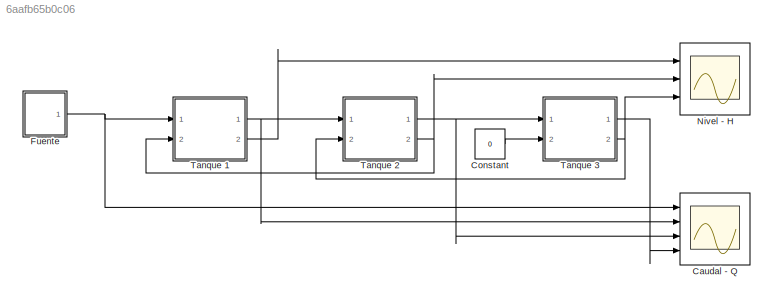
MODEL slx_6aafb65b0c06
KIND model
CONFIG AbsTol = auto
CONFIG EnableMultiTasking = on
CONFIG FixedStep = auto
CONFIG MaxStep = auto
CONFIG MinStep = auto
CONFIG RelTol = 1e-3
CONFIG SampleTimeConstraint = Unconstrained
CONFIG Solver = ode23tb
CONFIG SolverName = ode23tb
CONFIG StartTime = 0.0
CONFIG StopTime = 40.0
BLOCK [Scope] Caudal - Q
  Floating = off
  NumInputPorts = 4
  Ports = [4]
  ScopeSpecificationString = Simulink.scopes.TimeScopeBlockCfg('CurrentConfiguration', extmgr.ConfigurationSet(extmgr.Configuration('Core','General UI',true,'FigureColor',[0.972549019607843 0.972549019607843 0.972549019607843]),extmgr.Configuration('Core','Source UI',true),extmgr.Configuration('Sources','WiredSimulink',true,'DataLoggingVariableName','ScopeData1'),extmgr.Configuration('Visuals','Time Domain',true,'SerializedDi...<+2057ch>
BLOCK [Constant] Constant
  Value = 0
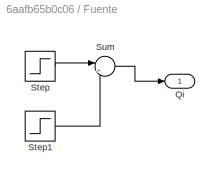
BLOCK [SubSystem] Fuente
  Ports = [0, 1]
  RequestExecContextInheritance = off
BLOCK [Outport] Fuente/Qi
  IconDisplay = Port number
BLOCK [Step] Fuente/Step
  SampleTime = 0
BLOCK [Step] Fuente/Step1
  After = -1
  SampleTime = 0
  Time = 20
BLOCK [Sum] Fuente/Sum
  IconShape = round
  InputSameDT = off
  Inputs = |++
  OutDataTypeStr = Inherit: Inherit via internal rule
  Ports = [2, 1]
  SaturateOnIntegerOverflow = off
BLOCK [Scope] Nivel - H
  Floating = off
  NumInputPorts = 3
  Ports = [3]
  ScopeSpecificationString = Simulink.scopes.TimeScopeBlockCfg('CurrentConfiguration', extmgr.ConfigurationSet(extmgr.Configuration('Core','General UI',true,'FigureColor',[0.972549019607843 0.972549019607843 0.972549019607843]),extmgr.Configuration('Core','Source UI',true),extmgr.Configuration('Sources','WiredSimulink',true),extmgr.Configuration('Visuals','Time Domain',true,'SerializedDisplays',{struct('MinYLimReal','-0.12515...<+1920ch>
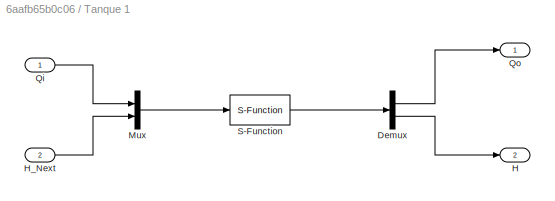
BLOCK [SubSystem] Tanque 1
  Ports = [2, 2]
  RequestExecContextInheritance = off
BLOCK [Demux] Tanque 1/Demux
  DisplayOption = bar
  Outputs = 2
  Ports = [1, 2]
BLOCK [Outport] Tanque 1/H 
  IconDisplay = Port number
  Port = 2
BLOCK [Inport] Tanque 1/H_Next
  IconDisplay = Port number
  Port = 2
BLOCK [Mux] Tanque 1/Mux
  DisplayOption = bar
  Inputs = 2
  Ports = [2, 1]
BLOCK [Inport] Tanque 1/Qi 
  IconDisplay = Port number
BLOCK [Outport] Tanque 1/Qo
  IconDisplay = Port number
BLOCK [S-Function] Tanque 1/S-Function
  EnableBusSupport = off
  FunctionName = tanque
  Parameters = 1, 1, 1, 0
  Ports = [1, 1]
  SFcnIsStateOwnerBlock = off
  SFunctionDeploymentMode = off
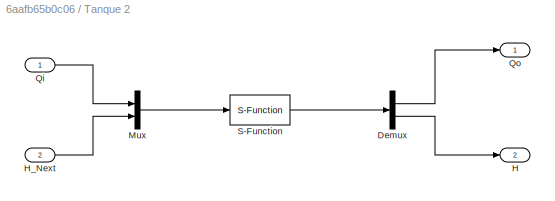
BLOCK [SubSystem] Tanque 2 
  Ports = [2, 2]
  RequestExecContextInheritance = off
BLOCK [Demux] Tanque 2 /Demux
  DisplayOption = bar
  Outputs = 2
  Ports = [1, 2]
BLOCK [Outport] Tanque 2 /H 
  IconDisplay = Port number
  Port = 2
BLOCK [Inport] Tanque 2 /H_Next
  IconDisplay = Port number
  Port = 2
BLOCK [Mux] Tanque 2 /Mux
  DisplayOption = bar
  Inputs = 2
  Ports = [2, 1]
BLOCK [Inport] Tanque 2 /Qi 
  IconDisplay = Port number
BLOCK [Outport] Tanque 2 /Qo
  IconDisplay = Port number
BLOCK [S-Function] Tanque 2 /S-Function
  EnableBusSupport = off
  FunctionName = tanque
  Parameters = 1, 1, 1, 0
  Ports = [1, 1]
  SFcnIsStateOwnerBlock = off
  SFunctionDeploymentMode = off
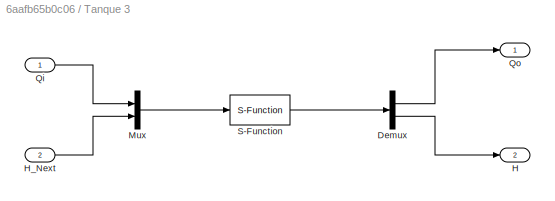
BLOCK [SubSystem] Tanque 3
  Ports = [2, 2]
  RequestExecContextInheritance = off
BLOCK [Demux] Tanque 3/Demux
  DisplayOption = bar
  Outputs = 2
  Ports = [1, 2]
BLOCK [Outport] Tanque 3/H 
  IconDisplay = Port number
  Port = 2
BLOCK [Inport] Tanque 3/H_Next
  IconDisplay = Port number
  Port = 2
BLOCK [Mux] Tanque 3/Mux
  DisplayOption = bar
  Inputs = 2
  Ports = [2, 1]
BLOCK [Inport] Tanque 3/Qi 
  IconDisplay = Port number
BLOCK [Outport] Tanque 3/Qo
  IconDisplay = Port number
BLOCK [S-Function] Tanque 3/S-Function
  EnableBusSupport = off
  FunctionName = tanque
  Parameters = 1, 1, 1, 0
  Ports = [1, 1]
  SFcnIsStateOwnerBlock = off
  SFunctionDeploymentMode = off
LINE Constant:1 -> Tanque 3:2
LINE Fuente/Step1:1 -> Fuente/Sum:2
LINE Fuente/Step:1 -> Fuente/Sum:1
LINE Fuente/Sum:1 -> Fuente/Qi:1
NET Fuente:1 -> Caudal - Q:1, Tanque 1:1
LINE Tanque 1/Demux:1 -> Tanque 1/Qo:1
LINE Tanque 1/Demux:2 -> Tanque 1/H :1
LINE Tanque 1/H_Next:1 -> Tanque 1/Mux:2
LINE Tanque 1/Mux:1 -> Tanque 1/S-Function:1
LINE Tanque 1/Qi :1 -> Tanque 1/Mux:1
LINE Tanque 1/S-Function:1 -> Tanque 1/Demux:1
NET Tanque 1:1 -> Caudal - Q:2, Tanque 2 :1
LINE Tanque 1:2 -> Nivel - H:1
LINE Tanque 2 /Demux:1 -> Tanque 2 /Qo:1
LINE Tanque 2 /Demux:2 -> Tanque 2 /H :1
LINE Tanque 2 /H_Next:1 -> Tanque 2 /Mux:2
LINE Tanque 2 /Mux:1 -> Tanque 2 /S-Function:1
LINE Tanque 2 /Qi :1 -> Tanque 2 /Mux:1
LINE Tanque 2 /S-Function:1 -> Tanque 2 /Demux:1
NET Tanque 2 :1 -> Caudal - Q:3, Tanque 3:1
NET Tanque 2 :2 -> Nivel - H:2, Tanque 1:2
LINE Tanque 3/Demux:1 -> Tanque 3/Qo:1
LINE Tanque 3/Demux:2 -> Tanque 3/H :1
LINE Tanque 3/H_Next:1 -> Tanque 3/Mux:2
LINE Tanque 3/Mux:1 -> Tanque 3/S-Function:1
LINE Tanque 3/Qi :1 -> Tanque 3/Mux:1
LINE Tanque 3/S-Function:1 -> Tanque 3/Demux:1
LINE Tanque 3:1 -> Caudal - Q:4
NET Tanque 3:2 -> Nivel - H:3, Tanque 2 :2
note: NET lines group one-source signal fan-out (src -> all destinations, sorted); 1:1 wires keep LINE
